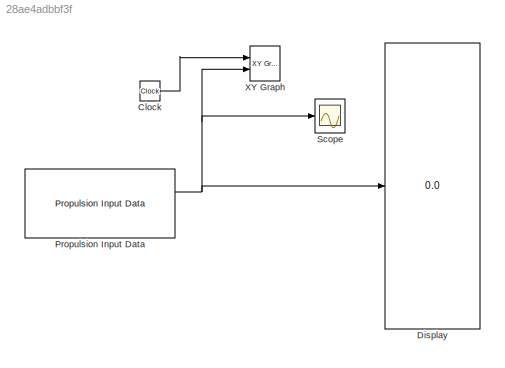
MODEL slx_28ae4adbbf3f
KIND model
BLOCK [Clock] Clock
BLOCK [Display] Display
  Decimation = 1
  Ports = [1]
BLOCK [Reference] Propulsion Input Data  REF=rocket_dynamic_data_library/Propulsion Input Data  (lib defined in slx_58be5b8ac4f4)
  Ports = [0, 2]
  SourceBlock = rocket_dynamic_data_library/Propulsion Input Data
  SourceType = SubSystem
BLOCK [Scope] Scope
  DataFormat = StructureWithTime
  Floating = off
  NumInputPorts = 1
  Ports = [1]
  SampleTime = 0
  ShowLegends = off
  YMax = 2500
  YMin = 0
BLOCK [Reference] XY Graph  REF=simulink/Sinks/XY Graph
  Ports = [2]
  SourceBlock = simulink/Sinks/XY Graph
  SourceType = XY scope.
  st = -1
  xmax = 4.4
  xmin = 0
  ymax = 2500
  ymin = 0
LINE Clock:1 -> XY Graph:1
NET Propulsion Input Data:1 -> Display:1, Scope:1, XY Graph:2
note: NET lines group one-source signal fan-out (src -> all destinations, sorted); 1:1 wires keep LINE
